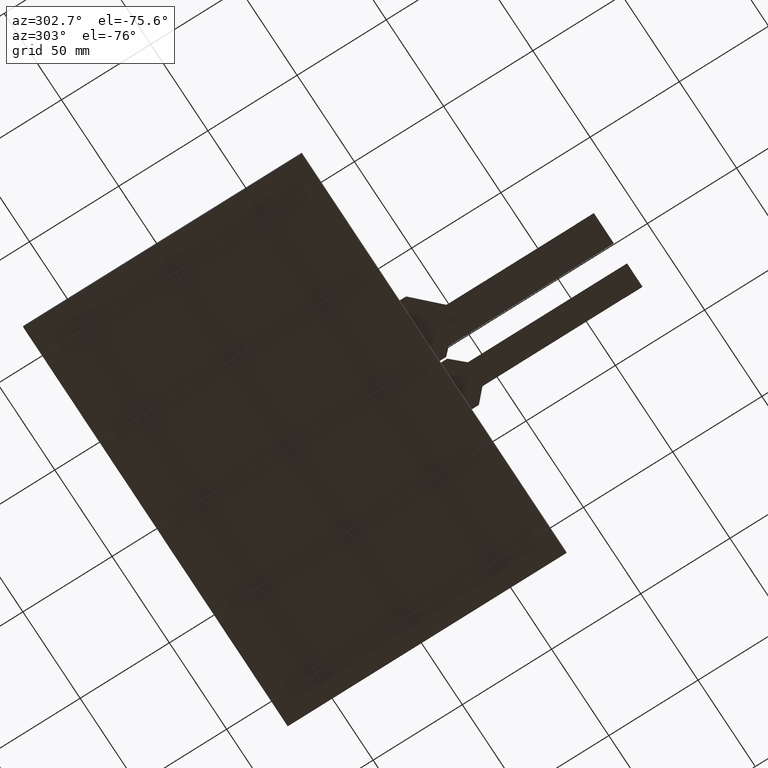
[diagram: clean part render]
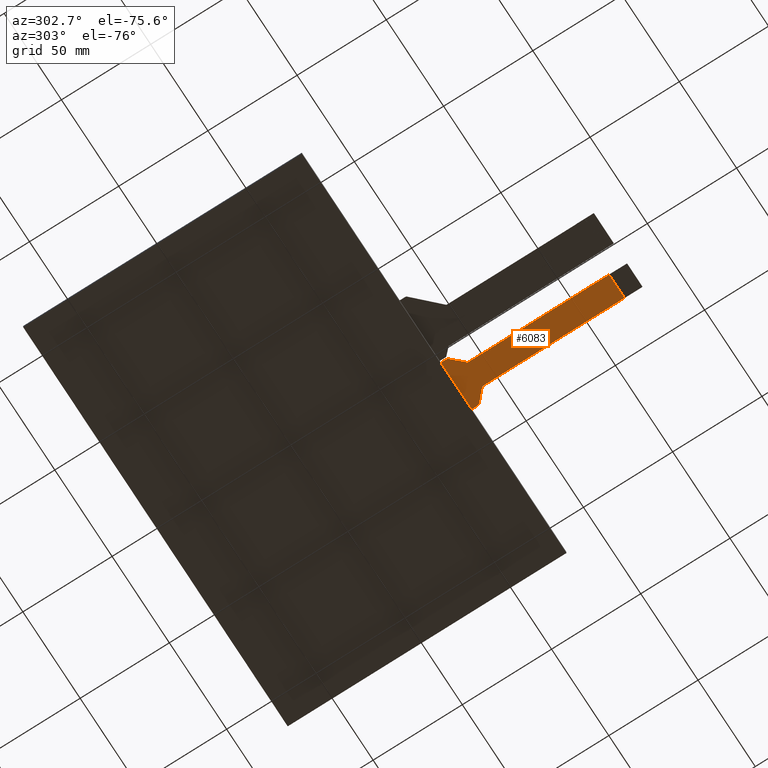
[diagram: same view with one face highlighted and labeled with its STEP entity id]
A machine part, auxiliary view. The second image highlights one B-rep face of the part: STEP entity #6083.
In plain terms, the highlighted planar face has unit normal (0, 0, -1).
Its self-contained STEP definition (entity closure, byte-faithful):
#313=PLANE('',#6421);
#607=FACE_OUTER_BOUND('',#901,.T.);
#901=EDGE_LOOP('',(#5688,#5689,#5690,#5691,#5692,#5693,#5694,#5695,#5696,
#5697,#5698,#5699));
#928=LINE('',#7933,#1768);
#942=LINE('',#7969,#1782);
#946=LINE('',#7979,#1786);
#1714=LINE('',#9551,#2554);
#1721=LINE('',#9564,#2561);
#1722=LINE('',#9566,#2562);
#1723=LINE('',#9569,#2563);
#1725=LINE('',#9572,#2565);
#1768=VECTOR('',#6454,10.);
#1782=VECTOR('',#6482,10.);
#1786=VECTOR('',#6492,10.);
#2554=VECTOR('',#7818,10.);
#2561=VECTOR('',#7833,10.);
#2562=VECTOR('',#7836,10.);
#2563=VECTOR('',#7839,10.);
#2565=VECTOR('',#7843,10.);
#2604=CIRCLE('',#6123,1.);
#2609=CIRCLE('',#6131,1.);
#2610=CIRCLE('',#6134,1.);
#2611=CIRCLE('',#6137,1.);
#2628=VERTEX_POINT('',#7920);
#2629=VERTEX_POINT('',#7921);
#2633=VERTEX_POINT('',#7931);
#2643=VERTEX_POINT('',#7955);
#2648=VERTEX_POINT('',#7967);
#2649=VERTEX_POINT('',#7971);
#2650=VERTEX_POINT('',#7973);
#2651=VERTEX_POINT('',#7977);
#2652=VERTEX_POINT('',#7981);
#3176=VERTEX_POINT('',#9550);
#3178=VERTEX_POINT('',#9562);
#3179=VERTEX_POINT('',#9568);
#3204=EDGE_CURVE('',#2628,#2629,#2604,.T.);
#3210=EDGE_CURVE('',#2628,#2633,#928,.T.);
#3222=EDGE_CURVE('',#2643,#2633,#2609,.T.);
#3228=EDGE_CURVE('',#2643,#2648,#942,.T.);
#3230=EDGE_CURVE('',#2649,#2650,#2610,.T.);
#3233=EDGE_CURVE('',#2649,#2651,#946,.T.);
#3234=EDGE_CURVE('',#2652,#2651,#2611,.T.);
#4018=EDGE_CURVE('',#2648,#3176,#1714,.T.);
#4025=EDGE_CURVE('',#2652,#3178,#1721,.T.);
#4026=EDGE_CURVE('',#3176,#2650,#1722,.T.);
#4027=EDGE_CURVE('',#3179,#2629,#1723,.T.);
#4029=EDGE_CURVE('',#3179,#3178,#1725,.T.);
#5688=ORIENTED_EDGE('',*,*,#3204,.F.);
#5689=ORIENTED_EDGE('',*,*,#3210,.T.);
#5690=ORIENTED_EDGE('',*,*,#3222,.F.);
#5691=ORIENTED_EDGE('',*,*,#3228,.T.);
#5692=ORIENTED_EDGE('',*,*,#4018,.T.);
#5693=ORIENTED_EDGE('',*,*,#4026,.T.);
#5694=ORIENTED_EDGE('',*,*,#3230,.F.);
#5695=ORIENTED_EDGE('',*,*,#3233,.T.);
#5696=ORIENTED_EDGE('',*,*,#3234,.F.);
#5697=ORIENTED_EDGE('',*,*,#4025,.T.);
#5698=ORIENTED_EDGE('',*,*,#4029,.F.);
#5699=ORIENTED_EDGE('',*,*,#4027,.T.);
#6083=ADVANCED_FACE('',(#607),#313,.T.);
#6123=AXIS2_PLACEMENT_3D('',#7922,#6444,#6445);
#6131=AXIS2_PLACEMENT_3D('',#7957,#6473,#6474);
#6134=AXIS2_PLACEMENT_3D('',#7974,#6486,#6487);
#6137=AXIS2_PLACEMENT_3D('',#7982,#6495,#6496);
#6421=AXIS2_PLACEMENT_3D('',#9571,#7841,#7842);
#6444=DIRECTION('center_axis',(0.,0.,1.));
#6445=DIRECTION('ref_axis',(0.917934156179117,-0.396732762599376,0.));
#6454=DIRECTION('',(-0.728349107330528,-0.685206230160543,0.));
#6473=DIRECTION('center_axis',(0.,0.,-1.));
#6474=DIRECTION('ref_axis',(-0.917934156179124,0.396732762599359,0.));
#6482=DIRECTION('',(9.9016546231898E-17,-1.,0.));
#6486=DIRECTION('center_axis',(0.,0.,-1.));
#6487=DIRECTION('ref_axis',(0.929609893269891,0.368545039764127,0.));
#6492=DIRECTION('',(-0.68520623016054,0.728349107330531,0.));
#6495=DIRECTION('center_axis',(0.,0.,1.));
#6496=DIRECTION('ref_axis',(-0.929609893269898,-0.36854503976411,0.));
#7818=DIRECTION('',(-1.,0.,0.));
#7833=DIRECTION('',(0.,1.,0.));
#7836=DIRECTION('',(-7.46577566930755E-17,1.,0.));
#7839=DIRECTION('',(0.,-1.,0.));
#7841=DIRECTION('center_axis',(0.,0.,-1.));
#7842=DIRECTION('ref_axis',(-1.,0.,0.));
#7843=DIRECTION('',(-1.,-1.53797128952403E-16,0.));
#7920=CARTESIAN_POINT('',(32.5952062301605,-84.7459754163288,-0.3));
#7921=CARTESIAN_POINT('',(32.91,-84.0176263089983,-0.3));
#7922=CARTESIAN_POINT('Origin',(31.91,-84.0176263089983,-0.3));
#7931=CARTESIAN_POINT('',(26.4747937698394,-90.5038526578274,-0.3));
#7933=CARTESIAN_POINT('',(26.16,-90.8,-0.3));
#7955=CARTESIAN_POINT('',(26.16,-91.2322017651579,-0.3));
#7957=CARTESIAN_POINT('Origin',(27.16,-91.2322017651579,-0.3));
#7967=CARTESIAN_POINT('',(26.16,-170.5,-0.3));
#7969=CARTESIAN_POINT('',(26.16,-180.5,-0.3));
#7971=CARTESIAN_POINT('',(12.3883491073305,-90.986247645755,-0.3));
#7973=CARTESIAN_POINT('',(12.66,-91.6714538759156,-0.3));
#7974=CARTESIAN_POINT('Origin',(11.66,-91.6714538759156,-0.3));
#7977=CARTESIAN_POINT('',(6.18165089266944,-84.3887549419026,-0.3));
#7979=CARTESIAN_POINT('',(5.90999999999997,-84.0999999999999,-0.3));
#7981=CARTESIAN_POINT('',(5.90999999999997,-83.7035487117421,-0.3));
#7982=CARTESIAN_POINT('Origin',(6.90999999999997,-83.7035487117421,-0.3));
#9550=CARTESIAN_POINT('',(12.66,-170.5,-0.3));
#9551=CARTESIAN_POINT('',(16.035,-170.5,-0.3));
#9562=CARTESIAN_POINT('',(5.90999999999997,-80.5,-0.3));
#9564=CARTESIAN_POINT('',(5.90999999999997,-80.5,-0.3));
#9566=CARTESIAN_POINT('',(12.66,-91.2750025876577,-0.3));
#9568=CARTESIAN_POINT('',(32.91,-80.5,-0.3));
#9569=CARTESIAN_POINT('',(32.91,-84.4498280741562,-0.3));
#9571=CARTESIAN_POINT('Origin',(19.41,-130.5,-0.3));
#9572=CARTESIAN_POINT('',(67.455,-80.4999999999999,-0.3));